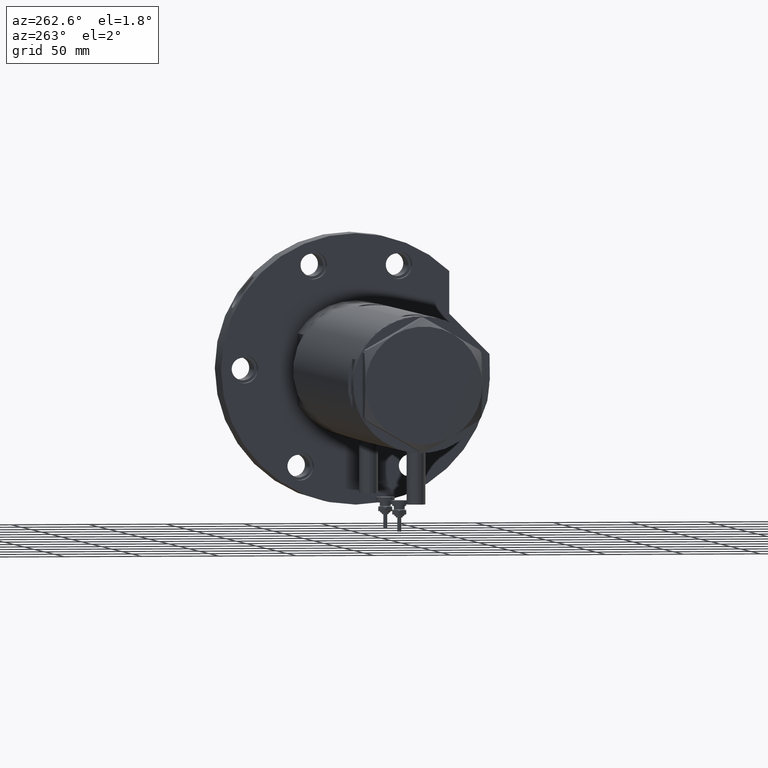
[diagram: clean part render]
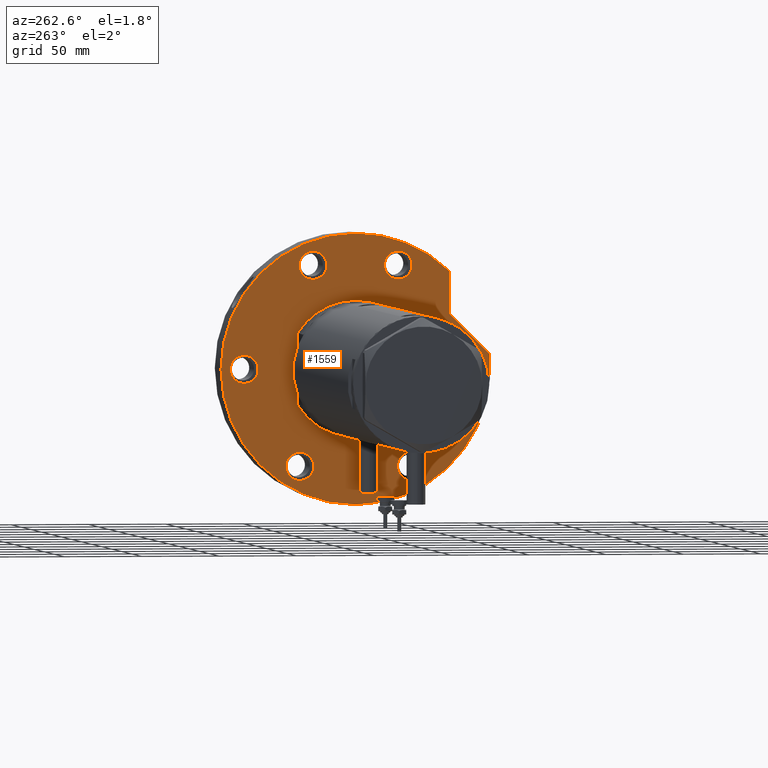
[diagram: same view with one face highlighted and labeled with its STEP entity id]
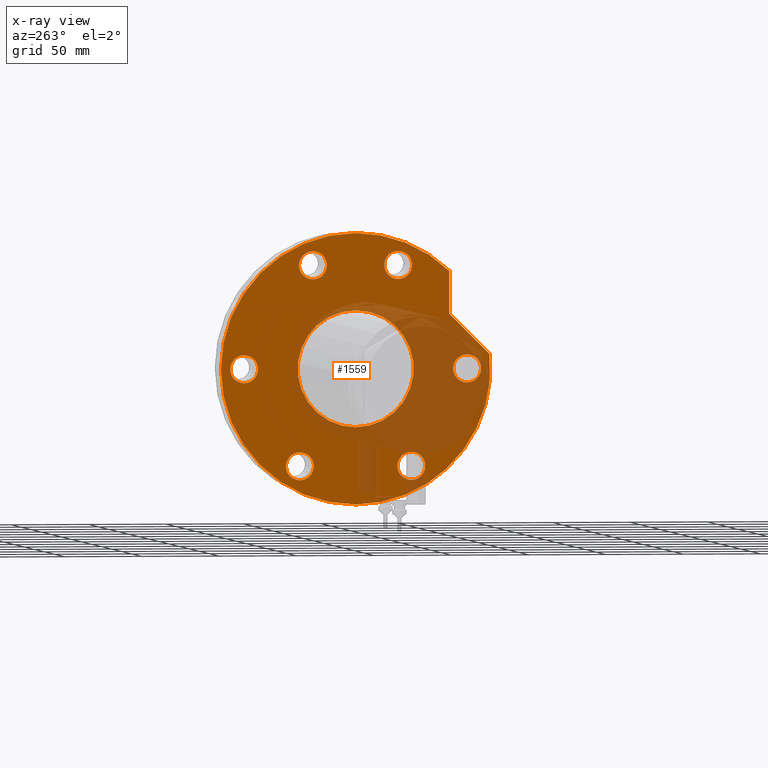
[diagram: x-ray of the same camera — body ghosted, the highlighted face saturated]
A machine part, auxiliary view. The second image highlights one B-rep face of the part: STEP entity #1559.
The next image is the same camera in x-ray: the body ghosted, the highlighted face saturated — about 30% of this face is hidden behind the body in this view.
In plain terms, the highlighted planar face has unit normal (1, 0, -0).
Its self-contained STEP definition (entity closure, byte-faithful):
#88 = CARTESIAN_POINT ( 'NONE',  ( 57.51932634081251905, 27.55320713028675073, 0.000000000000000000 ) ) ;
#119 = CIRCLE ( 'NONE', #3650, 9.000000000000001776 ) ;
#194 = DIRECTION ( 'NONE',  ( 1.000000000000000000, 0.000000000000000000, -0.000000000000000000 ) ) ;
#196 = DIRECTION ( 'NONE',  ( 0.000000000000000000, 0.000000000000000000, -1.000000000000000000 ) ) ;
#206 = VERTEX_POINT ( 'NONE', #6952 ) ;
#213 = AXIS2_PLACEMENT_3D ( 'NONE', #7221, #7139, #4264 ) ;
#220 = AXIS2_PLACEMENT_3D ( 'NONE', #764, #3083, #5467 ) ;
#237 = VERTEX_POINT ( 'NONE', #7149 ) ;
#248 = CIRCLE ( 'NONE', #4497, 8.999999999999998224 ) ;
#271 = ORIENTED_EDGE ( 'NONE', *, *, #2205, .F. ) ;
#278 = LINE ( 'NONE', #823, #7508 ) ;
#528 = ORIENTED_EDGE ( 'NONE', *, *, #6454, .F. ) ;
#534 = EDGE_CURVE ( 'NONE', #4320, #7352, #6034, .T. ) ;
#568 = DIRECTION ( 'NONE',  ( -1.000000000000000000, 0.000000000000000000, 0.000000000000000000 ) ) ;
#663 = EDGE_CURVE ( 'NONE', #206, #2886, #5797, .T. ) ;
#698 = CARTESIAN_POINT ( 'NONE',  ( 0.000000000000000000, 0.000000000000000000, 0.000000000000000000 ) ) ;
#764 = CARTESIAN_POINT ( 'NONE',  ( -62.35382907247942086, -36.00000000000027711, 0.000000000000000000 ) ) ;
#823 = CARTESIAN_POINT ( 'NONE',  ( 35.23236590573035443, 60.47687547247904405, 0.000000000000000000 ) ) ;
#838 = CARTESIAN_POINT ( 'NONE',  ( -8.999999999999998224, 72.00000000000000000, 0.000000000000000000 ) ) ;
#918 = ORIENTED_EDGE ( 'NONE', *, *, #663, .F. ) ;
#1028 = DIRECTION ( 'NONE',  ( -1.000000000000000000, 0.000000000000000000, 0.000000000000000000 ) ) ;
#1035 = EDGE_LOOP ( 'NONE', ( #3805, #1844, #7298, #3598, #271 ) ) ;
#1107 = CARTESIAN_POINT ( 'NONE',  ( 9.196694222441541555, 86.51254715576759224, 0.000000000000000000 ) ) ;
#1170 = EDGE_CURVE ( 'NONE', #2721, #5782, #4437, .T. ) ;
#1229 = EDGE_LOOP ( 'NONE', ( #6957, #4885 ) ) ;
#1256 = DIRECTION ( 'NONE',  ( 0.000000000000000000, 0.000000000000000000, 1.000000000000000000 ) ) ;
#1258 = CARTESIAN_POINT ( 'NONE',  ( 66.51932634081252615, -27.55320713028675073, 0.000000000000000000 ) ) ;
#1266 = DIRECTION ( 'NONE',  ( 1.000000000000000000, 0.000000000000000000, 0.000000000000000000 ) ) ;
#1371 = DIRECTION ( 'NONE',  ( -1.000000000000000000, 0.000000000000000000, 0.000000000000000000 ) ) ;
#1416 = VERTEX_POINT ( 'NONE', #3331 ) ;
#1559 = ADVANCED_FACE ( 'NONE', ( #3373, #5137, #7459, #2222, #4535, #3445, #5763, #4053 ), #6377, .F. ) ;
#1578 = AXIS2_PLACEMENT_3D ( 'NONE', #2488, #3001, #5346 ) ;
#1617 = EDGE_CURVE ( 'NONE', #5280, #237, #6637, .T. ) ;
#1628 = VERTEX_POINT ( 'NONE', #88 ) ;
#1684 = CARTESIAN_POINT ( 'NONE',  ( 0.000000000000000000, -72.00000000000000000, 0.000000000000000000 ) ) ;
#1774 = CARTESIAN_POINT ( 'NONE',  ( -62.35382907247942086, -36.00000000000027711, 0.000000000000000000 ) ) ;
#1784 = DIRECTION ( 'NONE',  ( -1.000000000000000000, 0.000000000000000000, 0.000000000000000000 ) ) ;
#1789 = DIRECTION ( 'NONE',  ( 0.000000000000000000, 0.000000000000000000, -1.000000000000000000 ) ) ;
#1820 = EDGE_CURVE ( 'NONE', #6685, #1416, #278, .T. ) ;
#1824 = AXIS2_PLACEMENT_3D ( 'NONE', #1774, #6426, #3642 ) ;
#1844 = ORIENTED_EDGE ( 'NONE', *, *, #1820, .T. ) ;
#1906 = CARTESIAN_POINT ( 'NONE',  ( 8.999999999999998224, -72.00000000000000000, 0.000000000000000000 ) ) ;
#1938 = AXIS2_PLACEMENT_3D ( 'NONE', #4489, #3899, #2793 ) ;
#1949 = DIRECTION ( 'NONE',  ( -1.000000000000000000, 0.000000000000000000, 0.000000000000000000 ) ) ;
#2069 = EDGE_LOOP ( 'NONE', ( #5258, #918 ) ) ;
#2164 = AXIS2_PLACEMENT_3D ( 'NONE', #4680, #6873, #6385 ) ;
#2179 = AXIS2_PLACEMENT_3D ( 'NONE', #5050, #3365, #4491 ) ;
#2205 = EDGE_CURVE ( 'NONE', #2775, #4408, #7148, .T. ) ;
#2222 = FACE_BOUND ( 'NONE', #4717, .T. ) ;
#2298 = CIRCLE ( 'NONE', #4124, 8.999999999999998224 ) ;
#2350 = DIRECTION ( 'NONE',  ( 0.000000000000000000, 0.000000000000000000, -1.000000000000000000 ) ) ;
#2357 = ORIENTED_EDGE ( 'NONE', *, *, #6576, .F. ) ;
#2443 = EDGE_CURVE ( 'NONE', #2886, #206, #5175, .T. ) ;
#2488 = CARTESIAN_POINT ( 'NONE',  ( 0.000000000000000000, 0.000000000000000000, 0.000000000000000000 ) ) ;
#2538 = DIRECTION ( 'NONE',  ( 0.000000000000000000, 0.000000000000000000, 1.000000000000000000 ) ) ;
#2594 = CARTESIAN_POINT ( 'NONE',  ( 0.000000000000000000, 0.000000000000000000, 0.000000000000000000 ) ) ;
#2602 = DIRECTION ( 'NONE',  ( -1.000000000000000000, 0.000000000000000000, 0.000000000000000000 ) ) ;
#2700 = EDGE_LOOP ( 'NONE', ( #4991, #2357 ) ) ;
#2708 = CARTESIAN_POINT ( 'NONE',  ( -37.50000000000000711, 4.592425496802575156E-15, 0.000000000000000000 ) ) ;
#2721 = VERTEX_POINT ( 'NONE', #4012 ) ;
#2773 = CARTESIAN_POINT ( 'NONE',  ( 57.51932634081251905, -27.55320713028675073, 0.000000000000000000 ) ) ;
#2775 = VERTEX_POINT ( 'NONE', #1107 ) ;
#2793 = DIRECTION ( 'NONE',  ( -1.000000000000000000, 0.000000000000000000, 0.000000000000000000 ) ) ;
#2877 = CARTESIAN_POINT ( 'NONE',  ( 37.50000000000000711, 0.000000000000000000, 0.000000000000000000 ) ) ;
#2878 = AXIS2_PLACEMENT_3D ( 'NONE', #698, #1256, #194 ) ;
#2886 = VERTEX_POINT ( 'NONE', #5433 ) ;
#2976 = CARTESIAN_POINT ( 'NONE',  ( 66.51932634081252615, -27.55320713028675073, 0.000000000000000000 ) ) ;
#3001 = DIRECTION ( 'NONE',  ( 0.000000000000000000, 0.000000000000000000, 1.000000000000000000 ) ) ;
#3031 = DIRECTION ( 'NONE',  ( 0.000000000000000000, 0.000000000000000000, -1.000000000000000000 ) ) ;
#3081 = CARTESIAN_POINT ( 'NONE',  ( -62.35382907247965534, 35.99999999999985079, 0.000000000000000000 ) ) ;
#3083 = DIRECTION ( 'NONE',  ( 0.000000000000000000, 0.000000000000000000, -1.000000000000000000 ) ) ;
#3132 = DIRECTION ( 'NONE',  ( 0.000000000000000000, 0.000000000000000000, -1.000000000000000000 ) ) ;
#3163 = DIRECTION ( 'NONE',  ( 1.000000000000000000, 0.000000000000000000, 0.000000000000000000 ) ) ;
#3235 = DIRECTION ( 'NONE',  ( 0.000000000000000000, 0.000000000000000000, 1.000000000000000000 ) ) ;
#3258 = CIRCLE ( 'NONE', #2164, 37.50000000000000711 ) ;
#3303 = VECTOR ( 'NONE', #4957, 999.9999999999998863 ) ;
#3324 = EDGE_CURVE ( 'NONE', #7352, #4320, #3258, .T. ) ;
#3331 = CARTESIAN_POINT ( 'NONE',  ( 62.54236590573034249, 60.47687547247904405, 0.000000000000000000 ) ) ;
#3365 = DIRECTION ( 'NONE',  ( 0.000000000000000000, 0.000000000000000000, -1.000000000000000000 ) ) ;
#3373 = FACE_BOUND ( 'NONE', #5364, .T. ) ;
#3376 = AXIS2_PLACEMENT_3D ( 'NONE', #5337, #3031, #5934 ) ;
#3445 = FACE_BOUND ( 'NONE', #2069, .T. ) ;
#3467 = EDGE_CURVE ( 'NONE', #5174, #1416, #5067, .T. ) ;
#3591 = DIRECTION ( 'NONE',  ( 0.000000000000000000, 0.000000000000000000, -1.000000000000000000 ) ) ;
#3598 = ORIENTED_EDGE ( 'NONE', *, *, #6935, .F. ) ;
#3642 = DIRECTION ( 'NONE',  ( -1.000000000000000000, 0.000000000000000000, 0.000000000000000000 ) ) ;
#3650 = AXIS2_PLACEMENT_3D ( 'NONE', #1258, #3591, #2602 ) ;
#3667 = CARTESIAN_POINT ( 'NONE',  ( 0.000000000000000000, 72.00000000000000000, 0.000000000000000000 ) ) ;
#3682 = LINE ( 'NONE', #6731, #3303 ) ;
#3692 = VERTEX_POINT ( 'NONE', #5515 ) ;
#3805 = ORIENTED_EDGE ( 'NONE', *, *, #6764, .T. ) ;
#3851 = AXIS2_PLACEMENT_3D ( 'NONE', #2594, #3235, #3163 ) ;
#3886 = EDGE_CURVE ( 'NONE', #3692, #6245, #6548, .T. ) ;
#3899 = DIRECTION ( 'NONE',  ( 0.000000000000000000, 0.000000000000000000, -1.000000000000000000 ) ) ;
#3900 = CIRCLE ( 'NONE', #5216, 9.000000000000001776 ) ;
#3910 = CARTESIAN_POINT ( 'NONE',  ( -53.35382907247941375, -36.00000000000027711, 0.000000000000000000 ) ) ;
#3946 = CARTESIAN_POINT ( 'NONE',  ( -8.999999999999998224, -72.00000000000000000, 0.000000000000000000 ) ) ;
#3951 = ORIENTED_EDGE ( 'NONE', *, *, #1170, .F. ) ;
#4012 = CARTESIAN_POINT ( 'NONE',  ( 75.51932634081252615, -27.55320713028675073, 0.000000000000000000 ) ) ;
#4053 = FACE_OUTER_BOUND ( 'NONE', #1035, .T. ) ;
#4100 = ORIENTED_EDGE ( 'NONE', *, *, #534, .T. ) ;
#4124 = AXIS2_PLACEMENT_3D ( 'NONE', #1684, #5720, #1028 ) ;
#4233 = EDGE_LOOP ( 'NONE', ( #4941, #4100 ) ) ;
#4264 = DIRECTION ( 'NONE',  ( 1.000000000000000000, 0.000000000000000000, 0.000000000000000000 ) ) ;
#4306 = VERTEX_POINT ( 'NONE', #4533 ) ;
#4320 = VERTEX_POINT ( 'NONE', #2708 ) ;
#4408 = VERTEX_POINT ( 'NONE', #6929 ) ;
#4437 = CIRCLE ( 'NONE', #6153, 9.000000000000001776 ) ;
#4489 = CARTESIAN_POINT ( 'NONE',  ( 66.51932634081252615, 27.55320713028675073, 0.000000000000000000 ) ) ;
#4491 = DIRECTION ( 'NONE',  ( -1.000000000000000000, 0.000000000000000000, 0.000000000000000000 ) ) ;
#4497 = AXIS2_PLACEMENT_3D ( 'NONE', #6598, #196, #1371 ) ;
#4533 = CARTESIAN_POINT ( 'NONE',  ( 75.51932634081252615, 27.55320713028675073, 0.000000000000000000 ) ) ;
#4535 = FACE_BOUND ( 'NONE', #1229, .T. ) ;
#4593 = ORIENTED_EDGE ( 'NONE', *, *, #4923, .F. ) ;
#4639 = EDGE_CURVE ( 'NONE', #237, #5280, #6084, .T. ) ;
#4680 = CARTESIAN_POINT ( 'NONE',  ( 0.000000000000000000, 0.000000000000000000, 0.000000000000000000 ) ) ;
#4717 = EDGE_LOOP ( 'NONE', ( #4593, #528 ) ) ;
#4845 = CIRCLE ( 'NONE', #1578, 87.00000000000000000 ) ;
#4885 = ORIENTED_EDGE ( 'NONE', *, *, #6895, .F. ) ;
#4923 = EDGE_CURVE ( 'NONE', #6345, #5054, #2298, .T. ) ;
#4941 = ORIENTED_EDGE ( 'NONE', *, *, #3324, .T. ) ;
#4942 = ORIENTED_EDGE ( 'NONE', *, *, #7388, .F. ) ;
#4957 = DIRECTION ( 'NONE',  ( 0.7071067811865511255, -0.7071067811865440200, -0.000000000000000000 ) ) ;
#4991 = ORIENTED_EDGE ( 'NONE', *, *, #7236, .F. ) ;
#5050 = CARTESIAN_POINT ( 'NONE',  ( 0.000000000000000000, 72.00000000000000000, 0.000000000000000000 ) ) ;
#5054 = VERTEX_POINT ( 'NONE', #1906 ) ;
#5067 = CIRCLE ( 'NONE', #213, 87.00000000000000000 ) ;
#5106 = DIRECTION ( 'NONE',  ( -1.000000000000000000, 0.000000000000000000, 0.000000000000000000 ) ) ;
#5137 = FACE_BOUND ( 'NONE', #2700, .T. ) ;
#5141 = CARTESIAN_POINT ( 'NONE',  ( 66.51932634081252615, 27.55320713028675073, 0.000000000000000000 ) ) ;
#5162 = AXIS2_PLACEMENT_3D ( 'NONE', #3667, #3132, #1949 ) ;
#5174 = VERTEX_POINT ( 'NONE', #5509 ) ;
#5175 = CIRCLE ( 'NONE', #6894, 9.000000000000001776 ) ;
#5216 = AXIS2_PLACEMENT_3D ( 'NONE', #5141, #6189, #5106 ) ;
#5258 = ORIENTED_EDGE ( 'NONE', *, *, #2443, .F. ) ;
#5280 = VERTEX_POINT ( 'NONE', #838 ) ;
#5337 = CARTESIAN_POINT ( 'NONE',  ( -62.35382907247965534, 35.99999999999985079, 0.000000000000000000 ) ) ;
#5346 = DIRECTION ( 'NONE',  ( 1.000000000000000000, 0.000000000000000000, 0.000000000000000000 ) ) ;
#5364 = EDGE_LOOP ( 'NONE', ( #7102, #7405 ) ) ;
#5416 = CARTESIAN_POINT ( 'NONE',  ( 0.000000000000000000, 0.000000000000000000, 0.000000000000000000 ) ) ;
#5433 = CARTESIAN_POINT ( 'NONE',  ( -71.35382907247965534, 35.99999999999985079, 0.000000000000000000 ) ) ;
#5467 = DIRECTION ( 'NONE',  ( -1.000000000000000000, 0.000000000000000000, 0.000000000000000000 ) ) ;
#5509 = CARTESIAN_POINT ( 'NONE',  ( 87.00000000000000000, 1.065442715258197209E-14, 0.000000000000000000 ) ) ;
#5515 = CARTESIAN_POINT ( 'NONE',  ( -71.35382907247941375, -36.00000000000027711, 0.000000000000000000 ) ) ;
#5720 = DIRECTION ( 'NONE',  ( 0.000000000000000000, 0.000000000000000000, -1.000000000000000000 ) ) ;
#5763 = FACE_BOUND ( 'NONE', #4233, .T. ) ;
#5782 = VERTEX_POINT ( 'NONE', #2773 ) ;
#5797 = CIRCLE ( 'NONE', #3376, 9.000000000000001776 ) ;
#5904 = CARTESIAN_POINT ( 'NONE',  ( 35.23236590573035443, 60.47687547247904405, 0.000000000000000000 ) ) ;
#5934 = DIRECTION ( 'NONE',  ( -1.000000000000000000, 0.000000000000000000, 0.000000000000000000 ) ) ;
#6034 = CIRCLE ( 'NONE', #6525, 37.50000000000000711 ) ;
#6048 = DIRECTION ( 'NONE',  ( 1.000000000000000000, 0.000000000000000000, 0.000000000000000000 ) ) ;
#6084 = CIRCLE ( 'NONE', #2179, 8.999999999999998224 ) ;
#6153 = AXIS2_PLACEMENT_3D ( 'NONE', #2976, #1789, #568 ) ;
#6189 = DIRECTION ( 'NONE',  ( 0.000000000000000000, 0.000000000000000000, -1.000000000000000000 ) ) ;
#6221 = CIRCLE ( 'NONE', #1938, 9.000000000000001776 ) ;
#6245 = VERTEX_POINT ( 'NONE', #3910 ) ;
#6345 = VERTEX_POINT ( 'NONE', #3946 ) ;
#6377 = PLANE ( 'NONE',  #2878 ) ;
#6385 = DIRECTION ( 'NONE',  ( 1.000000000000000000, 0.000000000000000000, 0.000000000000000000 ) ) ;
#6426 = DIRECTION ( 'NONE',  ( 0.000000000000000000, 0.000000000000000000, -1.000000000000000000 ) ) ;
#6454 = EDGE_CURVE ( 'NONE', #5054, #6345, #248, .T. ) ;
#6525 = AXIS2_PLACEMENT_3D ( 'NONE', #5416, #2538, #6048 ) ;
#6548 = CIRCLE ( 'NONE', #220, 9.000000000000001776 ) ;
#6560 = CIRCLE ( 'NONE', #1824, 9.000000000000001776 ) ;
#6576 = EDGE_CURVE ( 'NONE', #4306, #1628, #6221, .T. ) ;
#6598 = CARTESIAN_POINT ( 'NONE',  ( 0.000000000000000000, -72.00000000000000000, 0.000000000000000000 ) ) ;
#6637 = CIRCLE ( 'NONE', #5162, 8.999999999999998224 ) ;
#6685 = VERTEX_POINT ( 'NONE', #5904 ) ;
#6731 = CARTESIAN_POINT ( 'NONE',  ( 35.23236590573035443, 60.47687547247904405, 0.000000000000000000 ) ) ;
#6764 = EDGE_CURVE ( 'NONE', #2775, #6685, #3682, .T. ) ;
#6873 = DIRECTION ( 'NONE',  ( 0.000000000000000000, 0.000000000000000000, 1.000000000000000000 ) ) ;
#6894 = AXIS2_PLACEMENT_3D ( 'NONE', #3081, #2350, #1784 ) ;
#6895 = EDGE_CURVE ( 'NONE', #6245, #3692, #6560, .T. ) ;
#6929 = CARTESIAN_POINT ( 'NONE',  ( -87.00000000000000000, 0.000000000000000000, 0.000000000000000000 ) ) ;
#6935 = EDGE_CURVE ( 'NONE', #4408, #5174, #4845, .T. ) ;
#6952 = CARTESIAN_POINT ( 'NONE',  ( -53.35382907247965534, 35.99999999999985079, 0.000000000000000000 ) ) ;
#6957 = ORIENTED_EDGE ( 'NONE', *, *, #3886, .F. ) ;
#7102 = ORIENTED_EDGE ( 'NONE', *, *, #1617, .F. ) ;
#7139 = DIRECTION ( 'NONE',  ( 0.000000000000000000, 0.000000000000000000, 1.000000000000000000 ) ) ;
#7148 = CIRCLE ( 'NONE', #3851, 87.00000000000000000 ) ;
#7149 = CARTESIAN_POINT ( 'NONE',  ( 8.999999999999998224, 72.00000000000000000, 0.000000000000000000 ) ) ;
#7221 = CARTESIAN_POINT ( 'NONE',  ( 0.000000000000000000, 0.000000000000000000, 0.000000000000000000 ) ) ;
#7236 = EDGE_CURVE ( 'NONE', #1628, #4306, #3900, .T. ) ;
#7298 = ORIENTED_EDGE ( 'NONE', *, *, #3467, .F. ) ;
#7352 = VERTEX_POINT ( 'NONE', #2877 ) ;
#7388 = EDGE_CURVE ( 'NONE', #5782, #2721, #119, .T. ) ;
#7405 = ORIENTED_EDGE ( 'NONE', *, *, #4639, .F. ) ;
#7446 = EDGE_LOOP ( 'NONE', ( #4942, #3951 ) ) ;
#7459 = FACE_BOUND ( 'NONE', #7446, .T. ) ;
#7508 = VECTOR ( 'NONE', #1266, 1000.000000000000000 ) ;